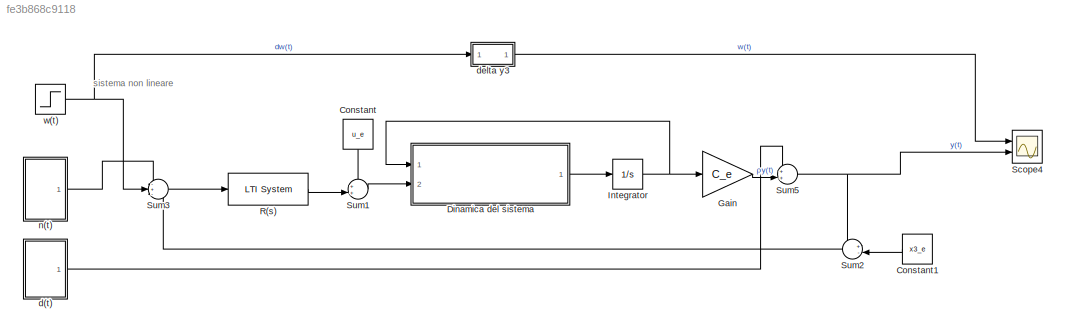
MODEL slx_fe3b868c9118
KIND model
CONFIG AbsTol = auto
CONFIG EnableMultiTasking = off
CONFIG FixedStep = auto
CONFIG InitFcn = beta1 = 0.25; % [N/m^2] Coefficiente di attrito\nbeta2 = 2.5; % [N/m^2] Coefficiente di attrito\nm = 250; % [kg] Massa\nk = 3.5; % Parametro adimensionale\nrho_e = 3e8; % [m] Distanza tra terra e satellite\nk_g = 6.67e-11; % [N*m^2/kg] Costante di gravitazione universale\nM = 5.98e24; % [kg] Massa della Terra\n%Matrici all'equilibrio\nA_e = [0,                                                          1,  ...<+348ch>
CONFIG MaxStep = auto
CONFIG MinStep = auto
CONFIG RelTol = 1e-3
CONFIG SampleTimeConstraint = Unconstrained
CONFIG SolverName = VariableStepAuto
CONFIG StartTime = 0.0
CONFIG StopTime = 10.0
BLOCK [Constant] Constant
  NameLocation = left
  Value = u_e
BLOCK [Constant] Constant1
  NameLocation = top
  Value = x3_e
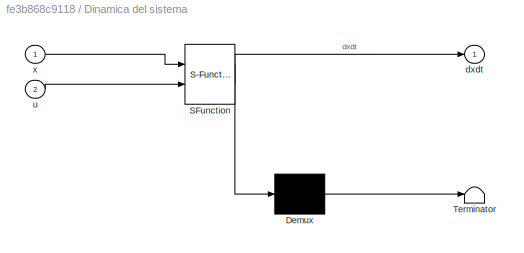
BLOCK [SubSystem] Dinamica del sistema
  ErrorFcn = Stateflow.Translate.translate
  PermitHierarchicalResolution = ExplicitOnly
  Ports = [2, 1]
  RequestExecContextInheritance = off
  SFBlockType = MATLAB Function
  TreatAsAtomicUnit = on
BLOCK [Demux] Dinamica del sistema/ Demux 
  Outputs = 1
  Ports = [1, 1]
BLOCK [S-Function] Dinamica del sistema/ SFunction 
  EnableBusSupport = on
  FunctionName = sf_sfun
  PortCounts = [2 2]
  Ports = [2, 2]
  SFcnIsStateOwnerBlock = off
  SFunctionDeploymentMode = off
  Tag = Stateflow S-Function 4
BLOCK [Terminator] Dinamica del sistema/ Terminator 
BLOCK [Outport] Dinamica del sistema/dxdt
BLOCK [Inport] Dinamica del sistema/u
  Port = 2
BLOCK [Inport] Dinamica del sistema/x
BLOCK [Gain] Gain
  Gain = C_e
  Multiplication = Matrix(K*u)
BLOCK [Integrator] Integrator
  InitialCondition = x_e
  Ports = [1, 1]
BLOCK [Reference] R(s)  REF=cstblocks/LTI System
  Ports = [1, 1]
  SourceBlock = cstblocks/LTI System
  SourceProductBaseCode = CT
  SourceType = LTI Block
BLOCK [Scope] Scope4
  Floating = off
  NumInputPorts = 2
  Ports = [2]
  ScopeSpecificationString = Simulink.scopes.TimeScopeBlockCfg('CurrentConfiguration', extmgr.ConfigurationSet(extmgr.Configuration('Core','General UI',true),extmgr.Configuration('Core','Source UI',true),extmgr.Configuration('Sources','WiredSimulink',true,'DataLoggingVariableName','ScopeData2'),extmgr.Configuration('Visuals','Time Domain',true,'SerializedDisplays',{struct('MinYLimReal','0.0000035434','MaxYLimReal','0.00000354...<+1470ch>
BLOCK [Sum] Sum1
  Inputs = ++|
  NameLocation = top
  Ports = [2, 1]
BLOCK [Sum] Sum2
  Inputs = +-|
  NameLocation = top
  Ports = [2, 1]
BLOCK [Sum] Sum3
  Inputs = -+-
  Ports = [3, 1]
BLOCK [Sum] Sum5
  Inputs = ++|
  Ports = [2, 1]
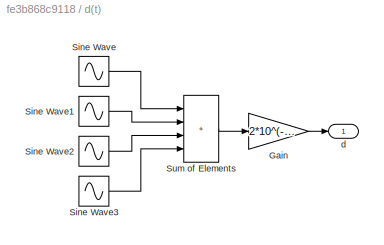
BLOCK [SubSystem] d(t)
  Ports = [0, 1]
  RequestExecContextInheritance = off
BLOCK [Gain] d(t)/Gain
  Gain = 2*10^(-8)
BLOCK [Sin] d(t)/Sine Wave
  Frequency = omega_d
  Ports = [0, 1]
  SampleTime = 0
BLOCK [Sin] d(t)/Sine Wave1
  Frequency = 2*omega_d
  Ports = [0, 1]
  SampleTime = 0
BLOCK [Sin] d(t)/Sine Wave2
  Frequency = 3*omega_d
  Ports = [0, 1]
  SampleTime = 0
BLOCK [Sin] d(t)/Sine Wave3
  Frequency = 4*omega_d
  Ports = [0, 1]
  SampleTime = 0
BLOCK [Sum] d(t)/Sum of Elements
  IconShape = rectangular
  InputSameDT = on
  Inputs = ++++
  Ports = [4, 1]
BLOCK [Outport] d(t)/d
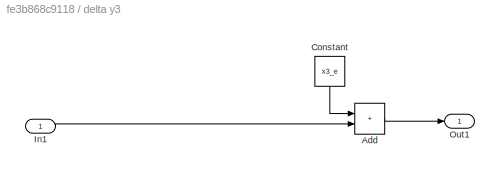
BLOCK [SubSystem] delta y3
  Ports = [1, 1]
  RequestExecContextInheritance = off
BLOCK [Sum] delta y3/Add
  IconShape = rectangular
  Ports = [2, 1]
BLOCK [Constant] delta y3/Constant
  NameLocation = left
  Value = x3_e
BLOCK [Inport] delta y3/In1
BLOCK [Outport] delta y3/Out1
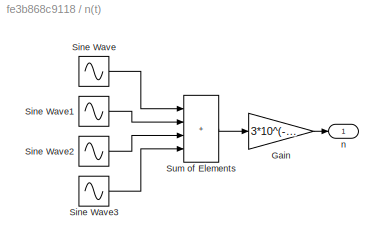
BLOCK [SubSystem] n(t)
  Ports = [0, 1]
  RequestExecContextInheritance = off
BLOCK [Gain] n(t)/Gain
  Gain = 3*10^(-8)
BLOCK [Sin] n(t)/Sine Wave
  Frequency = omega_n
  Ports = [0, 1]
  SampleTime = 0
BLOCK [Sin] n(t)/Sine Wave1
  Frequency = 2*omega_n
  Ports = [0, 1]
  SampleTime = 0
BLOCK [Sin] n(t)/Sine Wave2
  Frequency = 3*omega_n
  Ports = [0, 1]
  SampleTime = 0
BLOCK [Sin] n(t)/Sine Wave3
  Frequency = 4*omega_n
  Ports = [0, 1]
  SampleTime = 0
BLOCK [Sum] n(t)/Sum of Elements
  IconShape = rectangular
  InputSameDT = on
  Inputs = ++++
  Ports = [4, 1]
BLOCK [Outport] n(t)/n
BLOCK [Step] w(t)
  After = -3e-7
  SampleTime = 0
  Time = 2
ANNOTATION (root): sistema non lineare
LINE Constant1:1 -> Sum2:2
LINE Constant:1 -> Sum1:1
LINE Dinamica del sistema:1 -> Integrator:1
LINE Gain:1 -> Sum5:2
NET Integrator:1 -> Dinamica del sistema:1, Gain:1
LINE R(s):1 -> Sum1:2
LINE Sum1:1 -> Dinamica del sistema:2
LINE Sum2:1 -> Sum3:3
LINE Sum3:1 -> R(s):1
NET Sum5:1 -> Scope4:2, Sum2:1
LINE d(t)/Gain:1 -> d(t)/d:1
LINE d(t)/Sine Wave1:1 -> d(t)/Sum of Elements:2
LINE d(t)/Sine Wave2:1 -> d(t)/Sum of Elements:3
LINE d(t)/Sine Wave3:1 -> d(t)/Sum of Elements:4
LINE d(t)/Sine Wave:1 -> d(t)/Sum of Elements:1
LINE d(t)/Sum of Elements:1 -> d(t)/Gain:1
LINE d(t):1 -> Sum5:1
LINE delta y3/Add:1 -> delta y3/Out1:1
LINE delta y3/Constant:1 -> delta y3/Add:1
LINE delta y3/In1:1 -> delta y3/Add:2
LINE delta y3:1 -> Scope4:1
LINE n(t)/Gain:1 -> n(t)/n:1
LINE n(t)/Sine Wave1:1 -> n(t)/Sum of Elements:2
LINE n(t)/Sine Wave2:1 -> n(t)/Sum of Elements:3
LINE n(t)/Sine Wave3:1 -> n(t)/Sum of Elements:4
LINE n(t)/Sine Wave:1 -> n(t)/Sum of Elements:1
LINE n(t)/Sum of Elements:1 -> n(t)/Gain:1
LINE n(t):1 -> Sum3:1
NET w(t):1 -> Sum3:2, delta y3:1
note: NET lines group one-source signal fan-out (src -> all destinations, sorted); 1:1 wires keep LINE
CHART Dinamica del sistema states=1 transitions=1
  STATE_LABEL 'eML_blk_kernel()'
  STATE_LABEL 'SCRIPT:\nfunction dxdt = systemDynamics(x,u)\nbeta1 = 0.25; % [N/m^2] Coefficiente di attrito\nbeta2 = 2.5; % [N/m^2] Coefficiente di attrito\nm = 250; % [kg] Massa\nk = 3.5; % Parametro adimensionale\nk_g = 6.67e-11; % [N*m^2/kg] Costante di gravitazione universale\nM = 5.98e24; % [kg] Massa della Terra\n\ndx1dt=x(2);\ndx2dt=-beta1*x(2)/m+(k-1)*(k_g*M/(x(1)^2) - x(1)*(x(3)^2));\ndx3dt=-2*x(3)*x(2)/x(1)-beta...<+53ch>'
CHART  states=0 transitions=0
